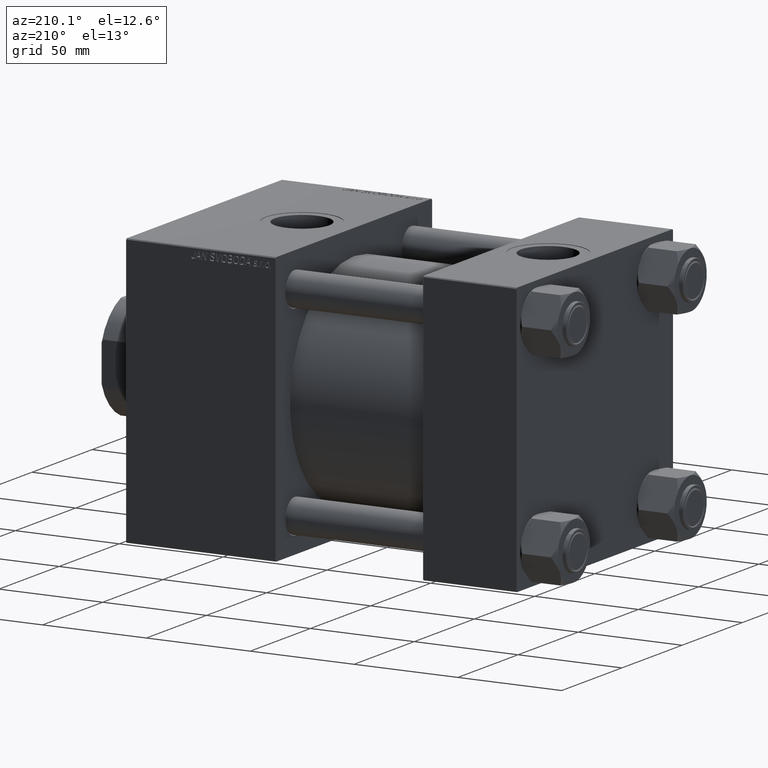
[diagram: clean part render]
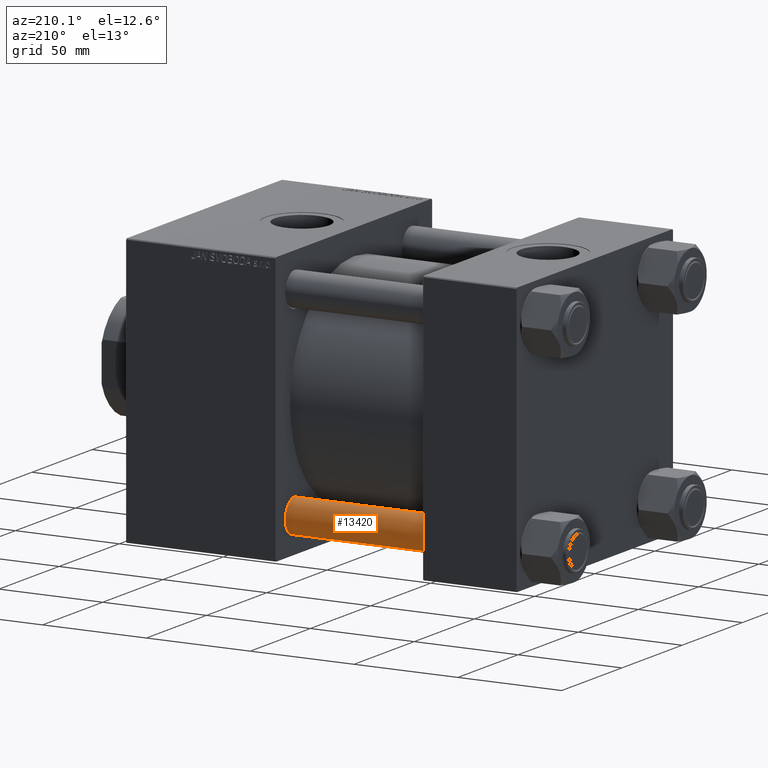
[diagram: same view with one face highlighted and labeled with its STEP entity id]
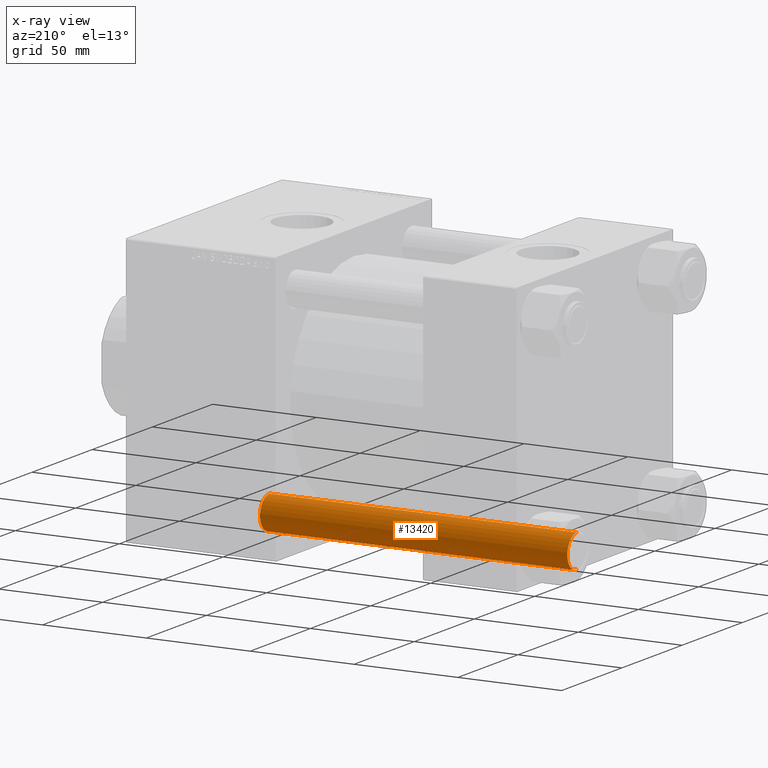
[diagram: x-ray of the same camera — body ghosted, the highlighted face saturated]
A machine part, auxiliary view. The second image highlights one B-rep face of the part: STEP entity #13420.
The next image is the same camera in x-ray: the body ghosted, the highlighted face saturated — about 0% of this face is hidden behind the body in this view.
In plain terms, the highlighted cylindrical surface (edge-blend (fillet) strip) has radius 8 mm, axis along (1, -0, -0).
Its self-contained STEP definition (entity closure, byte-faithful):
#498 = CARTESIAN_POINT ( 'NONE',  ( 0.000000000000000000, 0.000000000000000000, 149.0000000000000000 ) ) ;
#2133 = AXIS2_PLACEMENT_3D ( 'NONE', #26340, #14819, #6586 ) ;
#3591 = DIRECTION ( 'NONE',  ( -0.000000000000000000, -0.000000000000000000, -1.000000000000000000 ) ) ;
#6073 = DIRECTION ( 'NONE',  ( -0.000000000000000000, -0.000000000000000000, -1.000000000000000000 ) ) ;
#6315 = EDGE_CURVE ( 'NONE', #28999, #43721, #29159, .T. ) ;
#6586 = DIRECTION ( 'NONE',  ( 1.000000000000000000, 0.000000000000000000, 0.000000000000000000 ) ) ;
#6663 = AXIS2_PLACEMENT_3D ( 'NONE', #498, #3591, #20014 ) ;
#7348 = VECTOR ( 'NONE', #6073, 1000.000000000000000 ) ;
#7564 = CIRCLE ( 'NONE', #39516, 8.000000000000000000 ) ;
#10676 = CARTESIAN_POINT ( 'NONE',  ( -8.000000000000000000, 0.000000000000000000, 149.0000000000000000 ) ) ;
#12552 = EDGE_CURVE ( 'NONE', #33495, #28999, #7564, .T. ) ;
#12725 = VERTEX_POINT ( 'NONE', #13302 ) ;
#13302 = CARTESIAN_POINT ( 'NONE',  ( -8.000000000000000000, 0.000000000000000000, 0.5000000000000281997 ) ) ;
#13420 = ADVANCED_FACE ( 'NONE', ( #31026 ), #43096, .T. ) ;
#14752 = VECTOR ( 'NONE', #14789, 1000.000000000000000 ) ;
#14789 = DIRECTION ( 'NONE',  ( -0.000000000000000000, -0.000000000000000000, -1.000000000000000000 ) ) ;
#14819 = DIRECTION ( 'NONE',  ( -0.000000000000000000, -0.000000000000000000, 1.000000000000000000 ) ) ;
#20014 = DIRECTION ( 'NONE',  ( -1.000000000000000000, 0.000000000000000000, 0.000000000000000000 ) ) ;
#22505 = ORIENTED_EDGE ( 'NONE', *, *, #29163, .F. ) ;
#24610 = ORIENTED_EDGE ( 'NONE', *, *, #26500, .T. ) ;
#25824 = CARTESIAN_POINT ( 'NONE',  ( 8.000000000000000000, 9.797174393178825657E-16, 149.0000000000000000 ) ) ;
#26340 = CARTESIAN_POINT ( 'NONE',  ( 0.000000000000000000, 0.000000000000000000, 0.5000000000000281997 ) ) ;
#26500 = EDGE_CURVE ( 'NONE', #43721, #12725, #34082, .T. ) ;
#27575 = CARTESIAN_POINT ( 'NONE',  ( 8.000000000000000000, 9.797174393178825657E-16, 0.5000000000000281997 ) ) ;
#28999 = VERTEX_POINT ( 'NONE', #36087 ) ;
#29159 = LINE ( 'NONE', #25824, #7348 ) ;
#29163 = EDGE_CURVE ( 'NONE', #33495, #12725, #38624, .T. ) ;
#29758 = ORIENTED_EDGE ( 'NONE', *, *, #6315, .T. ) ;
#31026 = FACE_OUTER_BOUND ( 'NONE', #42568, .T. ) ;
#31096 = CARTESIAN_POINT ( 'NONE',  ( -8.000000000000000000, 0.000000000000000000, 148.5000000000000000 ) ) ;
#33495 = VERTEX_POINT ( 'NONE', #31096 ) ;
#34082 = CIRCLE ( 'NONE', #2133, 8.000000000000000000 ) ;
#36087 = CARTESIAN_POINT ( 'NONE',  ( 8.000000000000000000, 9.797174393178825657E-16, 148.5000000000000000 ) ) ;
#38624 = LINE ( 'NONE', #10676, #14752 ) ;
#39516 = AXIS2_PLACEMENT_3D ( 'NONE', #44139, #40533, #47486 ) ;
#40504 = ORIENTED_EDGE ( 'NONE', *, *, #12552, .T. ) ;
#40533 = DIRECTION ( 'NONE',  ( 0.000000000000000000, 0.000000000000000000, -1.000000000000000000 ) ) ;
#42568 = EDGE_LOOP ( 'NONE', ( #40504, #29758, #24610, #22505 ) ) ;
#43096 = CYLINDRICAL_SURFACE ( 'NONE', #6663, 8.000000000000000000 ) ;
#43721 = VERTEX_POINT ( 'NONE', #27575 ) ;
#44139 = CARTESIAN_POINT ( 'NONE',  ( 0.000000000000000000, 0.000000000000000000, 148.5000000000000000 ) ) ;
#47486 = DIRECTION ( 'NONE',  ( 1.000000000000000000, 0.000000000000000000, 0.000000000000000000 ) ) ;